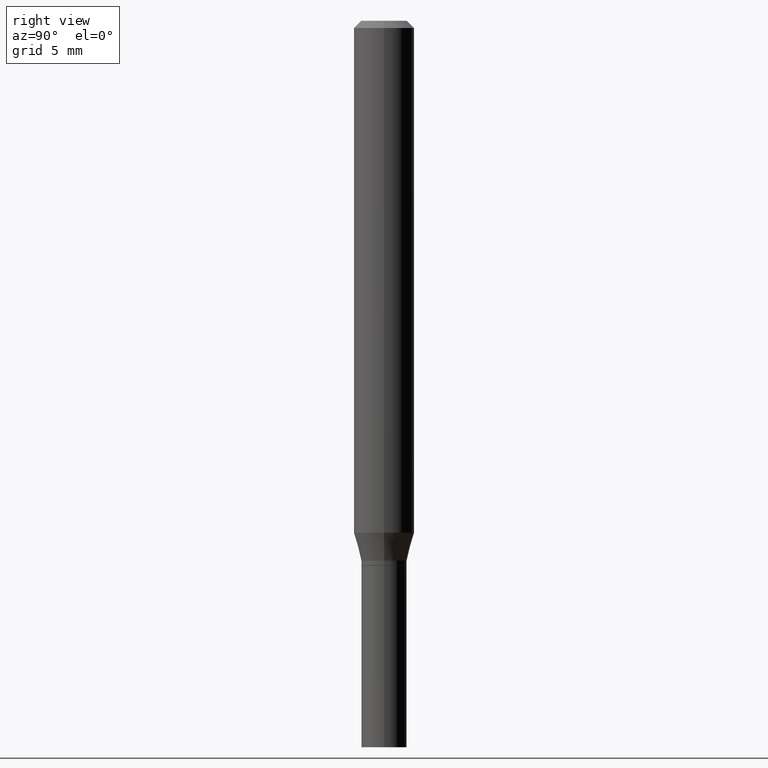
[diagram: clean part render]
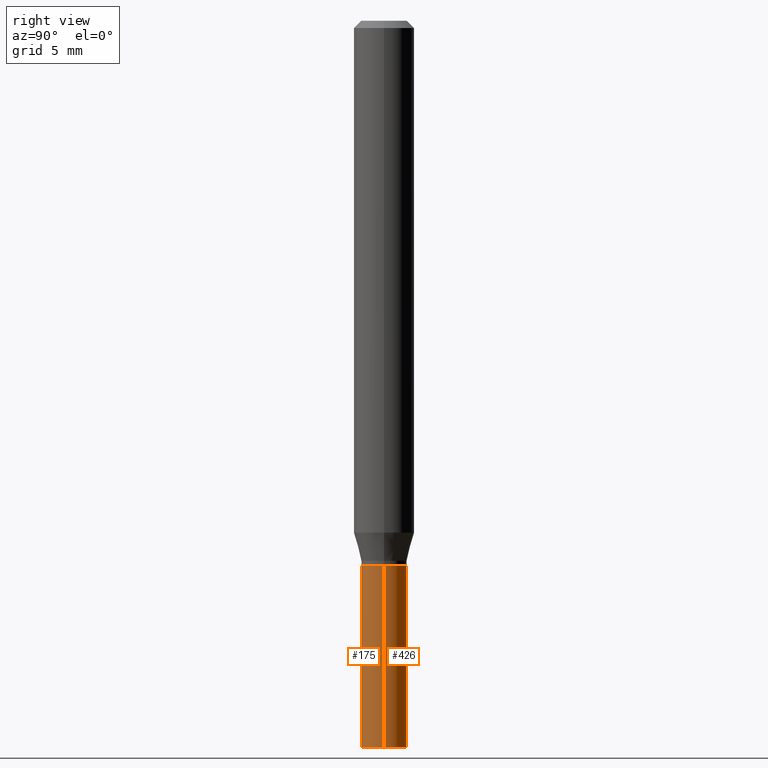
[diagram: same view with one multi-face feature highlighted, each face labeled with its STEP entity id]
A machine part, right view. The highlighted faces form ONE feature: a constant-radius fillet chain: 2 tangent blend faces with common blend radius 1.1913 mm. The faces share edges in the B-rep.
Their STEP definitions:
[1] entity #426 (Cylinder):
#21 = VERTEX_POINT ( 'NONE', #30 ) ;
#30 = CARTESIAN_POINT ( 'NONE',  ( 0.04689999999999999725, -5.564722957848204079E-15, -1.500000000000000222 ) ) ;
#43 = CARTESIAN_POINT ( 'NONE',  ( -0.04689999999999999725, -4.249324714160141733E-15, -1.500000000000000222 ) ) ;
#45 = DIRECTION ( 'NONE',  ( -2.445468806185136877E-29, 3.491481338843145188E-15, 1.000000000000000000 ) ) ;
#53 = ORIENTED_EDGE ( 'NONE', *, *, #287, .T. ) ;
#58 = CARTESIAN_POINT ( 'NONE',  ( 3.668203209277704895E-29, -5.237222008264718177E-15, -1.500000000000000222 ) ) ;
#61 = EDGE_CURVE ( 'NONE', #383, #62, #465, .T. ) ;
#62 = VERTEX_POINT ( 'NONE', #325 ) ;
#71 = DIRECTION ( 'NONE',  ( 1.000000000000000000, -6.982962677686256455E-15, 0.000000000000000000 ) ) ;
#82 = LINE ( 'NONE', #237, #240 ) ;
#108 = DIRECTION ( 'NONE',  ( 1.000000000000000000, -6.982962677686266711E-15, 0.000000000000000000 ) ) ;
#123 = VERTEX_POINT ( 'NONE', #43 ) ;
#138 = DIRECTION ( 'NONE',  ( -2.445468806185136597E-29, 3.491481338843145583E-15, 1.000000000000000000 ) ) ;
#148 = DIRECTION ( 'NONE',  ( -2.445468806185136597E-29, 3.491481338843145583E-15, 1.000000000000000000 ) ) ;
#149 = EDGE_LOOP ( 'NONE', ( #53, #253, #285, #181 ) ) ;
#163 = DIRECTION ( 'NONE',  ( -2.445468806185136877E-29, 3.491481338843145188E-15, 1.000000000000000000 ) ) ;
#167 = AXIS2_PLACEMENT_3D ( 'NONE', #331, #220, #108 ) ;
#181 = ORIENTED_EDGE ( 'NONE', *, *, #182, .F. ) ;
#182 = EDGE_CURVE ( 'NONE', #21, #383, #208, .T. ) ;
#187 = CIRCLE ( 'NONE', #451, 0.04689999999999999725 ) ;
#208 = LINE ( 'NONE', #452, #286 ) ;
#220 = DIRECTION ( 'NONE',  ( -2.445468806185136597E-29, 3.491481338843145583E-15, 1.000000000000000000 ) ) ;
#237 = CARTESIAN_POINT ( 'NONE',  ( -0.04689999999999999725, 3.332445430714869676E-16, -2.306980557329550952E-30 ) ) ;
#240 = VECTOR ( 'NONE', #45, 39.37007874015748143 ) ;
#253 = ORIENTED_EDGE ( 'NONE', *, *, #298, .T. ) ;
#285 = ORIENTED_EDGE ( 'NONE', *, *, #61, .F. ) ;
#286 = VECTOR ( 'NONE', #163, 39.37007874015748143 ) ;
#287 = EDGE_CURVE ( 'NONE', #21, #123, #187, .T. ) ;
#298 = EDGE_CURVE ( 'NONE', #123, #62, #82, .T. ) ;
#316 = CARTESIAN_POINT ( 'NONE',  ( 0.000000000000000000, 0.000000000000000000, 0.000000000000000000 ) ) ;
#325 = CARTESIAN_POINT ( 'NONE',  ( -0.04689999999999999725, -4.249324714160141733E-15, -1.125000000000000222 ) ) ;
#331 = CARTESIAN_POINT ( 'NONE',  ( 2.751152406958279232E-29, -3.927916506198539224E-15, -1.125000000000000222 ) ) ;
#337 = FACE_OUTER_BOUND ( 'NONE', #149, .T. ) ;
#342 = DIRECTION ( 'NONE',  ( 1.000000000000000000, -6.982962677686266711E-15, 4.876176775795936353E-29 ) ) ;
#366 = CARTESIAN_POINT ( 'NONE',  ( 0.04689999999999999725, -4.255417455782025127E-15, -1.125000000000000222 ) ) ;
#383 = VERTEX_POINT ( 'NONE', #366 ) ;
#387 = AXIS2_PLACEMENT_3D ( 'NONE', #316, #148, #342 ) ;
#395 = CYLINDRICAL_SURFACE ( 'NONE', #387, 0.04689999999999999725 ) ;
#426 = ADVANCED_FACE ( 'NONE', ( #337 ), #395, .T. ) ;
#451 = AXIS2_PLACEMENT_3D ( 'NONE', #58, #138, #71 ) ;
#452 = CARTESIAN_POINT ( 'NONE',  ( 0.04689999999999999725, -3.275009495834859024E-16, 2.286926907848294038E-30 ) ) ;
#465 = CIRCLE ( 'NONE', #167, 0.04689999999999999725 ) ;
[2] entity #175 (Cylinder):
#19 = CIRCLE ( 'NONE', #159, 0.04689999999999999725 ) ;
#21 = VERTEX_POINT ( 'NONE', #30 ) ;
#30 = CARTESIAN_POINT ( 'NONE',  ( 0.04689999999999999725, -5.564722957848204079E-15, -1.500000000000000222 ) ) ;
#43 = CARTESIAN_POINT ( 'NONE',  ( -0.04689999999999999725, -4.249324714160141733E-15, -1.500000000000000222 ) ) ;
#45 = DIRECTION ( 'NONE',  ( -2.445468806185136877E-29, 3.491481338843145188E-15, 1.000000000000000000 ) ) ;
#46 = EDGE_CURVE ( 'NONE', #123, #21, #19, .T. ) ;
#62 = VERTEX_POINT ( 'NONE', #325 ) ;
#65 = DIRECTION ( 'NONE',  ( -2.445468806185136597E-29, 3.491481338843145583E-15, 1.000000000000000000 ) ) ;
#76 = CARTESIAN_POINT ( 'NONE',  ( 2.751152406958279232E-29, -3.927916506198539224E-15, -1.125000000000000222 ) ) ;
#82 = LINE ( 'NONE', #237, #240 ) ;
#107 = CIRCLE ( 'NONE', #329, 0.04689999999999999725 ) ;
#123 = VERTEX_POINT ( 'NONE', #43 ) ;
#126 = ORIENTED_EDGE ( 'NONE', *, *, #46, .T. ) ;
#134 = ORIENTED_EDGE ( 'NONE', *, *, #216, .F. ) ;
#135 = FACE_OUTER_BOUND ( 'NONE', #242, .T. ) ;
#152 = DIRECTION ( 'NONE',  ( 1.000000000000000000, -6.982962677686256455E-15, 0.000000000000000000 ) ) ;
#156 = CARTESIAN_POINT ( 'NONE',  ( 3.668203209277704895E-29, -5.237222008264718177E-15, -1.500000000000000222 ) ) ;
#159 = AXIS2_PLACEMENT_3D ( 'NONE', #156, #65, #152 ) ;
#163 = DIRECTION ( 'NONE',  ( -2.445468806185136877E-29, 3.491481338843145188E-15, 1.000000000000000000 ) ) ;
#175 = ADVANCED_FACE ( 'NONE', ( #135 ), #450, .T. ) ;
#182 = EDGE_CURVE ( 'NONE', #21, #383, #208, .T. ) ;
#208 = LINE ( 'NONE', #452, #286 ) ;
#216 = EDGE_CURVE ( 'NONE', #62, #383, #107, .T. ) ;
#237 = CARTESIAN_POINT ( 'NONE',  ( -0.04689999999999999725, 3.332445430714869676E-16, -2.306980557329550952E-30 ) ) ;
#240 = VECTOR ( 'NONE', #45, 39.37007874015748143 ) ;
#242 = EDGE_LOOP ( 'NONE', ( #459, #126, #291, #134 ) ) ;
#246 = AXIS2_PLACEMENT_3D ( 'NONE', #283, #420, #384 ) ;
#270 = DIRECTION ( 'NONE',  ( -2.445468806185136597E-29, 3.491481338843145583E-15, 1.000000000000000000 ) ) ;
#283 = CARTESIAN_POINT ( 'NONE',  ( 0.000000000000000000, 0.000000000000000000, 0.000000000000000000 ) ) ;
#286 = VECTOR ( 'NONE', #163, 39.37007874015748143 ) ;
#291 = ORIENTED_EDGE ( 'NONE', *, *, #182, .T. ) ;
#298 = EDGE_CURVE ( 'NONE', #123, #62, #82, .T. ) ;
#325 = CARTESIAN_POINT ( 'NONE',  ( -0.04689999999999999725, -4.249324714160141733E-15, -1.125000000000000222 ) ) ;
#329 = AXIS2_PLACEMENT_3D ( 'NONE', #76, #270, #406 ) ;
#366 = CARTESIAN_POINT ( 'NONE',  ( 0.04689999999999999725, -4.255417455782025127E-15, -1.125000000000000222 ) ) ;
#383 = VERTEX_POINT ( 'NONE', #366 ) ;
#384 = DIRECTION ( 'NONE',  ( 1.000000000000000000, -6.982962677686266711E-15, 4.876176775795936353E-29 ) ) ;
#406 = DIRECTION ( 'NONE',  ( 1.000000000000000000, -6.982962677686266711E-15, 0.000000000000000000 ) ) ;
#420 = DIRECTION ( 'NONE',  ( -2.445468806185136597E-29, 3.491481338843145583E-15, 1.000000000000000000 ) ) ;
#450 = CYLINDRICAL_SURFACE ( 'NONE', #246, 0.04689999999999999725 ) ;
#452 = CARTESIAN_POINT ( 'NONE',  ( 0.04689999999999999725, -3.275009495834859024E-16, 2.286926907848294038E-30 ) ) ;
#459 = ORIENTED_EDGE ( 'NONE', *, *, #298, .F. ) ;